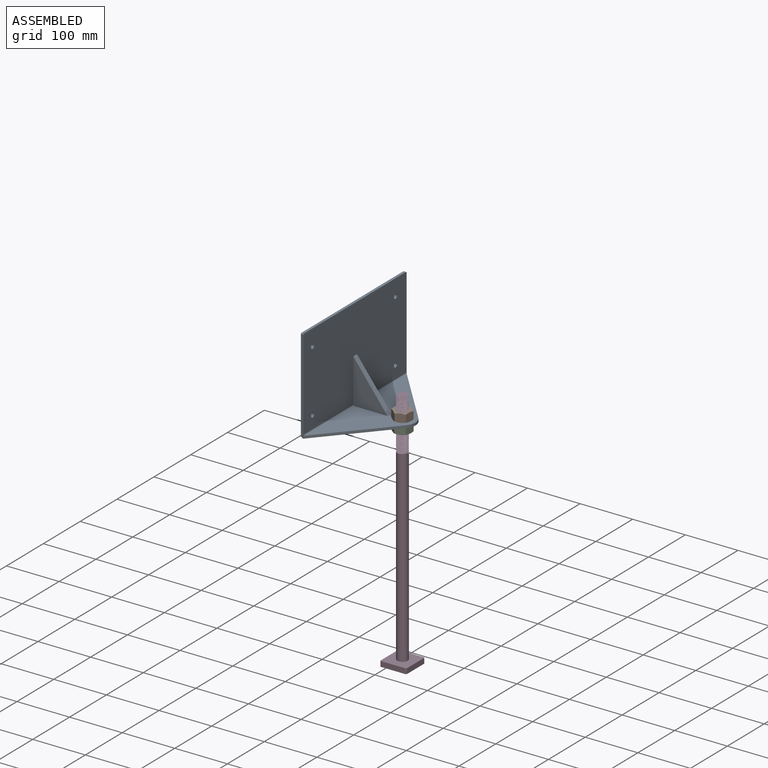
[diagram: assembled view]
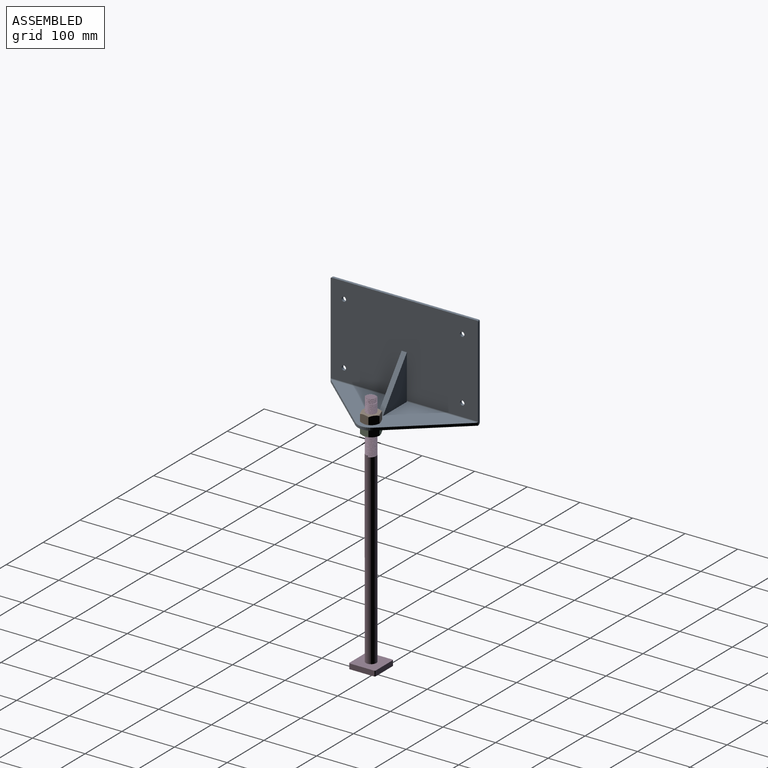
[diagram: assembled view, second angle]
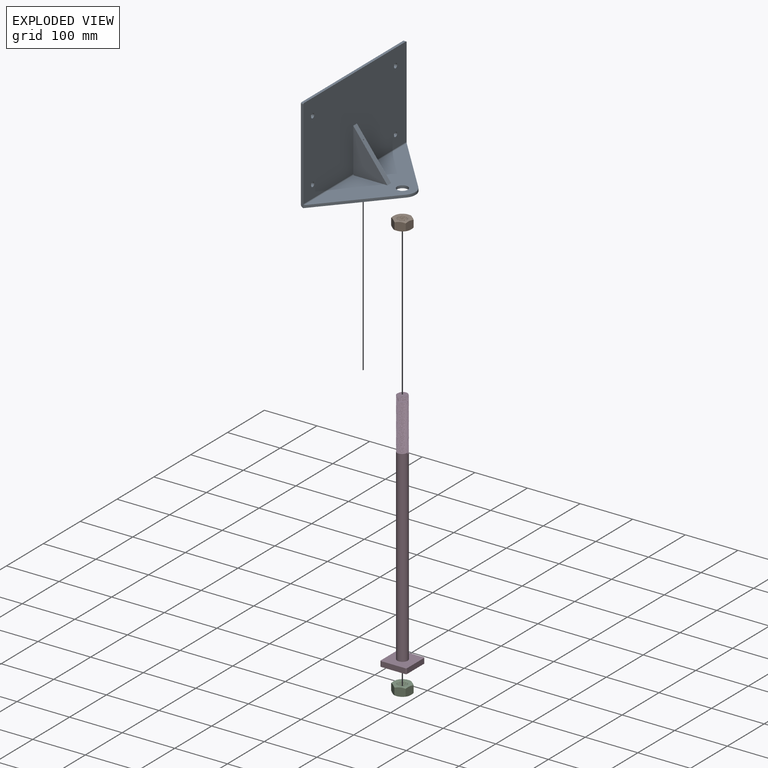
[diagram: exploded view]
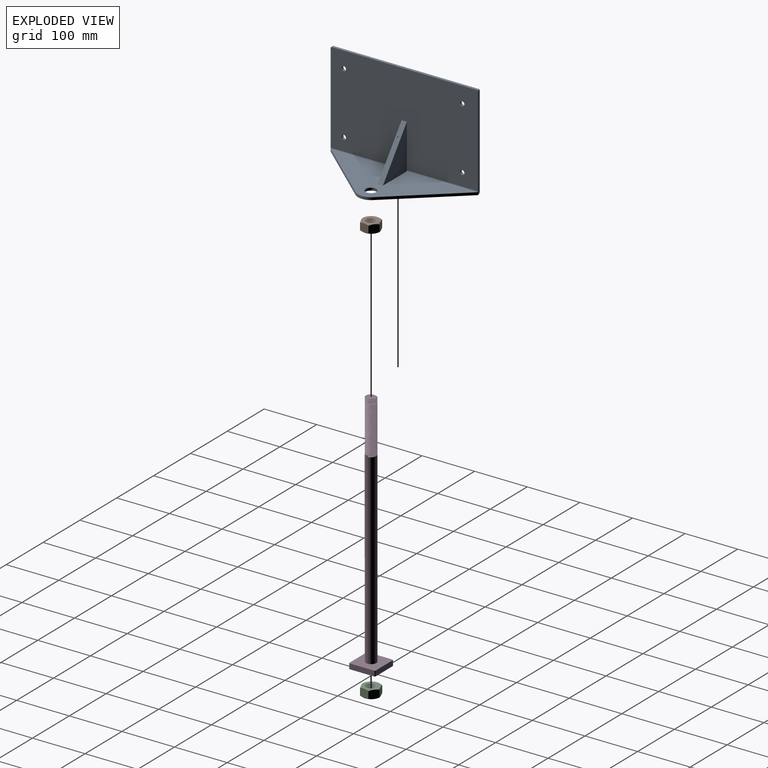
[diagram: exploded view, second angle]
ASSEMBLY  parts=4 mates=3
PART A: 23 faces, bbox 120x280x180 mm
  f0: plane 178x5mm, normal (0,-1,0), area 884.6mm2, adj f6,f8,f9,f19,f20
  f1: plane 280x115mm, normal (0,0,-1), area 16833.8mm2, adj f16,f17,f18,f19,f20
  f2: plane 275.46x113mm, normal (0,0,1), area 15648.3mm2, adj f4,f5,f15,f16,f17,f18,f19,f21
  f3: plane 178x5mm, normal (0,1,0), area 884.6mm2, adj f6,f8,f10,f17,f20
  f4: plane 85x65mm, normal (0,1,0), area 2761.6mm2, adj f2,f6,f15,f22
  f5: plane 85x65mm, normal (0,-1,0), area 2761.6mm2, adj f2,f6,f15,f21
  f6: plane 280x173mm, normal (1,0,0), area 47381.3mm2, adj f0,f3,f4,f5,f7,f9,f10,f11
  f7: plane 276x5mm, normal (0,0,1), area 1380mm2, adj f6,f8,f9,f10
  f8: plane 280x175mm, normal (-1,0,0), area 48771.3mm2, adj f0,f3,f7,f9,f10,f11,f12,f13
  f9: cylinder r=2mm len=5mm, axis (-1,0,0), area 15.7mm2, adj f0,f6,f7,f8
  f10: cylinder r=2mm len=5mm, axis (1,0,0), area 15.7mm2, adj f3,f6,f7,f8
  f11: cylinder r=4.25mm len=8.5mm, axis (1,0,0), area 133.5mm2, adj f6,f8
  f12: cylinder r=4.25mm len=8.5mm, axis (1,0,0), area 133.5mm2, adj f6,f8
  f13: cylinder r=4.25mm len=8.5mm, axis (1,0,0), area 133.5mm2, adj f6,f8
  f14: cylinder r=4.25mm len=8.5mm, axis (1,0,0), area 133.5mm2, adj f6,f8
  f15: plane 85x65mm, normal (0.79,0,0.61), area 1070mm2, adj f2,f4,f5,f6
  f16: cylinder r=10.25mm len=20.5mm, axis (0,0,1), area 322mm2, adj f1,f2
  f17: plane 123.92x109.14mm, normal (0.75,0.66,0), area 826.9mm2, adj f1,f2,f3,f18,f22
  f18: cylinder r=25mm len=32.17mm, axis (0,0,1), area 174.7mm2, adj f1,f2,f17,f19
  f19: plane 123.92x109.14mm, normal (0.75,-0.66,0), area 826.9mm2, adj f0,f1,f2,f18,f21
  f20: cylinder r=5mm len=280mm, axis (0,-1,0), area 2199.1mm2, adj f0,f1,f3,f8
  f21: cylinder r=2mm len=135mm, axis (0,1,0), area 421.5mm2, adj f2,f5,f6,f19
  f22: cylinder r=2mm len=135mm, axis (0,1,0), area 421.5mm2, adj f2,f4,f6,f17
PART B: 31 faces, bbox 37.4x19.2x37.4 mm
  f0: bspline ~21.43x20.7mm, area 132.3mm2, adj f1,f27,f28,f29
  f1: cone r=9.3mm half-angle=60deg, axis (0,-1,0), area 57.1mm2, adj f0,f2,f28,f29
  f2: plane 31.18x31.18mm, normal (0,-1,0), area 449.2mm2, adj f1,f3,f4,f5,f15,f16,f17
  f3: cone r=16.79mm half-angle=60deg, axis (0,1,0), area 23.9mm2, adj f2,f6,f21
  f4: cone r=16.79mm half-angle=60deg, axis (0,1,0), area 23.9mm2, adj f2,f20,f21
  f5: cone r=16.79mm half-angle=60deg, axis (0,1,0), area 23.9mm2, adj f2,f18,f20
  f6: plane 19.45x17.45mm, normal (0,0,1), area 270.8mm2, adj f3,f7,f11,f14,f15,f21
  f7: cone r=16.79mm half-angle=60deg, axis (0,-1,0), area 23.9mm2, adj f6,f10,f21
  f8: cone r=16.79mm half-angle=60deg, axis (0,-1,0), area 23.9mm2, adj f10,f20,f21
  f9: cone r=16.79mm half-angle=60deg, axis (0,-1,0), area 23.9mm2, adj f10,f18,f20
  f10: plane 31.18x31.18mm, normal (0,1,0), area 449.2mm2, adj f7,f8,f9,f11,f12,f13,f22
  f11: cone r=16.79mm half-angle=60deg, axis (0,-1,0), area 23.9mm2, adj f6,f10,f14
  f12: cone r=16.79mm half-angle=60deg, axis (0,-1,0), area 23.9mm2, adj f10,f18,f19
  f13: cone r=16.79mm half-angle=60deg, axis (0,-1,0), area 23.9mm2, adj f10,f14,f19
  f14: plane 17.45x17.04mm, normal (-0.87,0,0.5), area 270.8mm2, adj f6,f11,f13,f15,f17,f19
  f15: cone r=16.79mm half-angle=60deg, axis (0,1,0), area 23.9mm2, adj f2,f6,f14
  f16: cone r=16.79mm half-angle=60deg, axis (0,1,0), area 23.9mm2, adj f2,f18,f19
  f17: cone r=16.79mm half-angle=60deg, axis (0,1,0), area 23.9mm2, adj f2,f14,f19
  f18: plane 19.45x17.45mm, normal (0,0,-1), area 270.8mm2, adj f5,f9,f12,f16,f19,f20
  f19: plane 17.45x17.04mm, normal (-0.87,0,-0.5), area 270.8mm2, adj f12,f13,f14,f16,f17,f18
  f20: plane 17.45x17.04mm, normal (0.87,0,-0.5), area 270.8mm2, adj f4,f5,f8,f9,f18,f21
  f21: plane 17.45x17.04mm, normal (0.87,0,0.5), area 270.8mm2, adj f3,f4,f6,f7,f8,f20
  f22: cone r=9.35mm half-angle=60deg, axis (0,1,0), area 57.1mm2, adj f10,f23,f24,f25
  f23: bspline ~21.04x21.02mm, area 188.1mm2, adj f22,f24,f25,f26,f27
  f24: bspline ~18.82x18.82mm, area 50.1mm2, adj f22,f23,f25,f30
  f25: bspline ~21.43x20.7mm, area 132.4mm2, adj f22,f23,f24,f26
  f26: bspline ~20.72x20.72mm, area 352.6mm2, adj f23,f25,f27,f28,f30
  f27: bspline ~20.72x20.72mm, area 352.6mm2, adj f0,f23,f26,f28,f30
  f28: bspline ~21.04x21.02mm, area 187.9mm2, adj f0,f1,f26,f27,f29
  f29: bspline ~18.82x18.82mm, area 50.1mm2, adj f0,f1,f28,f30
  f30: bspline ~17.99x17.98mm, area 123.3mm2, adj f24,f26,f27,f29
PART C: same geometry as B
PART D: 55 faces, bbox 51.9x51.9x468.2 mm
  f0: cylinder r=10mm len=1.18mm, axis (0,0,1), area 0mm2, adj f1,f41,f42
  f1: cylinder r=10mm len=20mm, axis (0,0,1), area 2.7mm2, adj f0,f2,f42,f44
  f2: cylinder r=10mm len=20mm, axis (0,0,1), area 2.7mm2, adj f1,f3,f42,f44
  f3: cylinder r=10mm len=20mm, axis (0,0,1), area 2.7mm2, adj f2,f4,f42,f44
  f4: cylinder r=10mm len=20mm, axis (0,0,1), area 2.8mm2, adj f3,f5,f42,f44
  f5: cylinder r=10mm len=20mm, axis (0,0,1), area 2.8mm2, adj f4,f6,f42,f44
  f6: cylinder r=10mm len=20mm, axis (0,0,1), area 2.8mm2, adj f5,f7,f42,f44
  f7: cylinder r=10mm len=20mm, axis (0,0,1), area 2.8mm2, adj f6,f8,f42,f44
  f8: cylinder r=10mm len=20mm, axis (0,0,1), area 2.7mm2, adj f7,f9,f42,f44
  f9: cylinder r=10mm len=20mm, axis (0,0,1), area 2.7mm2, adj f8,f10,f42,f44
  f10: cylinder r=10mm len=20mm, axis (0,0,1), area 2.7mm2, adj f9,f11,f42,f44
  f11: cylinder r=10mm len=20mm, axis (0,0,1), area 2.7mm2, adj f10,f12,f42,f44
  f12: cylinder r=10mm len=20mm, axis (0,0,1), area 2.7mm2, adj f11,f13,f42,f44
  f13: cylinder r=10mm len=20mm, axis (0,0,1), area 2.8mm2, adj f12,f14,f42,f44
  f14: cylinder r=10mm len=20mm, axis (0,0,1), area 2.7mm2, adj f13,f15,f42,f44
  f15: cylinder r=10mm len=20mm, axis (0,0,1), area 2.7mm2, adj f14,f16,f42,f44
  f16: cylinder r=10mm len=20mm, axis (0,0,1), area 2.7mm2, adj f15,f17,f42,f44
  f17: cylinder r=10mm len=20mm, axis (0,0,1), area 2.7mm2, adj f16,f18,f42,f44
  f18: cylinder r=10mm len=20mm, axis (0,0,1), area 2.8mm2, adj f17,f19,f42,f44
  f19: cylinder r=10mm len=20mm, axis (0,0,1), area 2.8mm2, adj f18,f20,f42,f44
  f20: cylinder r=10mm len=20mm, axis (0,0,1), area 2.8mm2, adj f19,f21,f42,f44
  f21: cylinder r=10mm len=20mm, axis (0,0,1), area 2.8mm2, adj f20,f22,f42,f44
  f22: cylinder r=10mm len=20mm, axis (0,0,1), area 2.8mm2, adj f21,f23,f42,f44
  f23: cylinder r=10mm len=20mm, axis (0,0,1), area 2.8mm2, adj f22,f24,f42,f44
  f24: cylinder r=10mm len=20mm, axis (0,0,1), area 2.8mm2, adj f23,f25,f42,f44
  f25: cylinder r=10mm len=20mm, axis (0,0,1), area 2.8mm2, adj f24,f26,f42,f44
  f26: cylinder r=10mm len=20mm, axis (0,0,1), area 2.8mm2, adj f25,f27,f42,f44
  f27: cylinder r=10mm len=20mm, axis (0,0,1), area 2.8mm2, adj f26,f28,f42,f44
  f28: cylinder r=10mm len=20mm, axis (0,0,1), area 2.7mm2, adj f27,f29,f42,f44
  f29: cylinder r=10mm len=20mm, axis (0,0,1), area 2.7mm2, adj f28,f30,f42,f44
  f30: cylinder r=10mm len=20mm, axis (0,0,1), area 2.7mm2, adj f29,f31,f42,f44
  f31: cylinder r=10mm len=20mm, axis (0,0,1), area 2.7mm2, adj f30,f32,f42,f44
  f32: cylinder r=10mm len=20mm, axis (0,0,1), area 2.8mm2, adj f31,f33,f42,f44
  f33: cylinder r=10mm len=20mm, axis (0,0,1), area 2.8mm2, adj f32,f34,f42,f44
  f34: cylinder r=10mm len=20mm, axis (0,0,1), area 2.7mm2, adj f33,f35,f42,f44
  f35: cylinder r=10mm len=20mm, axis (0,0,1), area 2.7mm2, adj f34,f36,f42,f44
  f36: cylinder r=10mm len=20mm, axis (0,0,1), area 2.7mm2, adj f35,f37,f42,f44
  f37: cylinder r=10mm len=20mm, axis (0,0,1), area 2.7mm2, adj f36,f38,f42,f44
  f38: cylinder r=10mm len=20mm, axis (0,0,1), area 2.7mm2, adj f37,f39,f42,f44
  f39: cylinder r=10mm len=20mm, axis (0,0,1), area 2.8mm2, adj f38,f40,f42,f44
  f40: cylinder r=10mm len=357.5mm, axis (0,0,1), area 22383.9mm2, adj f39,f43,f44,f50
  f41: plane 19.9x19.86mm, normal (0,0,1), area 253.2mm2, adj f0,f42,f44
  f42: bspline ~99.93x23.28mm, area 5355.5mm2, adj f0,f1,f2,f3,f4,f5,f6,f7
  f43: plane 2.46x2.12mm, normal (0,1,0), area 2.6mm2, adj f40,f42,f44
  f44: bspline ~101.32x23.09mm, area 5584.1mm2, adj f1,f2,f3,f4,f5,f6,f7,f8
  f45: plane 46x10mm, normal (0,1,0), area 460mm2, adj f49,f50,f51,f54
  f46: plane 46x10mm, normal (1,0,0), area 460mm2, adj f49,f50,f51,f52
  f47: plane 46x10mm, normal (0,-1,0), area 460mm2, adj f49,f50,f52,f53
  f48: plane 46x10mm, normal (-1,0,0), area 460mm2, adj f49,f50,f53,f54
  f49: plane 50x50mm, normal (0,0,-1), area 2496.6mm2, adj f45,f46,f47,f48,f51,f52,f53,f54
  f50: plane 50x50mm, normal (0,0,1), area 2182.4mm2, adj f40,f45,f46,f47,f48,f51,f52,f53
  f51: cylinder r=2mm len=10mm, axis (0,0,1), area 31.4mm2, adj f45,f46,f49,f50
  f52: cylinder r=2mm len=10mm, axis (0,0,-1), area 31.4mm2, adj f46,f47,f49,f50
  f53: cylinder r=2mm len=10mm, axis (0,0,1), area 31.4mm2, adj f47,f48,f49,f50
  f54: cylinder r=2mm len=10mm, axis (0,0,-1), area 31.4mm2, adj f45,f48,f49,f50
PLACE A t=(-104.72,-86.73,108.79)mm
PLACE B rot(axis=(-0.97,-0.18,0.18),92deg) t=(-14.72,53.27,29.16)mm
PLACE C rot(axis=(0.64,0.55,0.55),115.1deg) t=(-14.72,53.27,8.31)mm
PLACE D t=(-14.72,53.27,63.17)mm fixed
MATE slider D.f0 <-> A.f16  axis (0,0,1) through (-14.72,53.27,-164.33)mm
MATE cylindrical D.f0 <-> B.f1  axis (0,0,1) through (-14.72,53.27,-164.33)mm
MATE cylindrical D.f0 <-> C.f1  axis (0,0,1) through (-14.72,53.27,-164.33)mm
